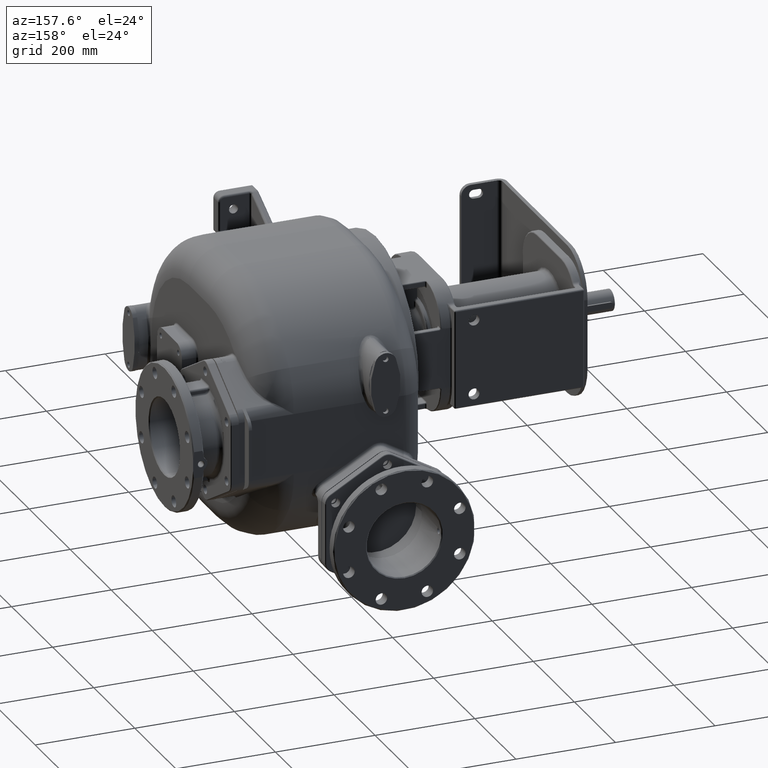
[diagram: clean part render]
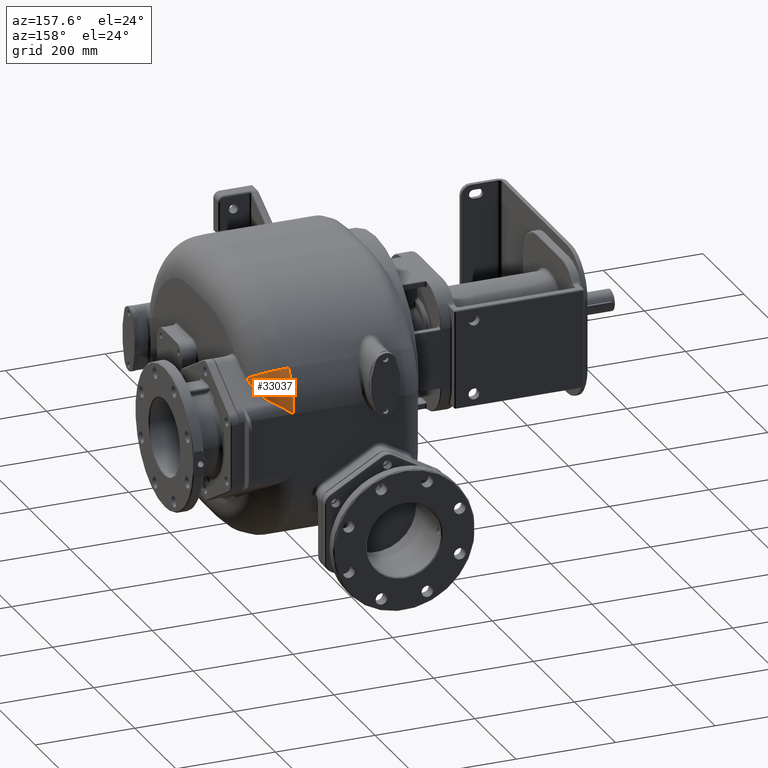
[diagram: same view with one face highlighted and labeled with its STEP entity id]
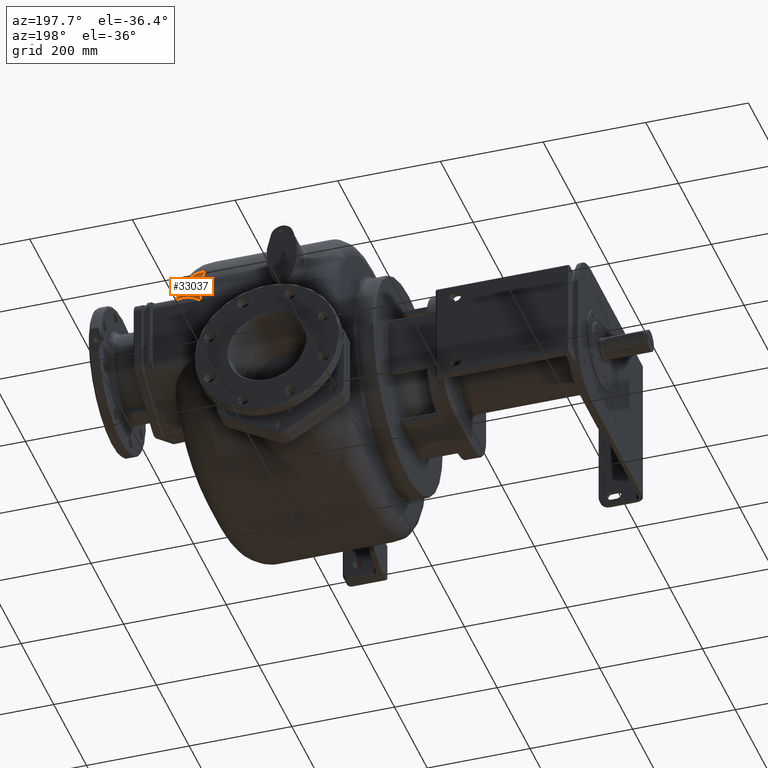
[diagram: same view with one face highlighted and labeled with its STEP entity id]
A machine part, auxiliary view. The second image highlights one B-rep face of the part: STEP entity #33037.
A second angle (auxiliary view) of the same face is appended — the face is thin or edge-on in the first view.
In plain terms, the highlighted toroidal blend (fillet) surface has major radius 82.9167 mm and minor (blend) radius 70 mm.
Its self-contained STEP definition (entity closure, byte-faithful):
#4479=CARTESIAN_POINT('',(1.2E2,5.265641410353E2,7.987209287375E1));
#4480=DIRECTION('',(0.E0,5.457324374936E-1,-8.379594898725E-1));
#4481=DIRECTION('',(0.E0,8.379594898725E-1,5.457324374936E-1));
#4482=AXIS2_PLACEMENT_3D('',#4479,#4480,#4481);
#4484=CARTESIAN_POINT('',(1.870251000919E2,5.434825401822E2,9.089042886316E1));
#8829=CARTESIAN_POINT('',(1.586499507312E2,5.962156773759E2,5.915733488316E1));
#8830=CARTESIAN_POINT('',(1.589997681733E2,5.959526663340E2,5.931481853799E1));
#8831=CARTESIAN_POINT('',(1.596958595641E2,5.954180585678E2,5.963497730158E1));
#8832=CARTESIAN_POINT('',(1.607285673633E2,5.945905005741E2,6.013069264557E1));
#8833=CARTESIAN_POINT('',(1.617496126781E2,5.937369924631E2,6.064206017254E1));
#8834=CARTESIAN_POINT('',(1.627585681694E2,5.928573512401E2,6.116919443771E1));
#8835=CARTESIAN_POINT('',(1.637550280898E2,5.919513640238E2,6.171224137861E1));
#8836=CARTESIAN_POINT('',(1.647385091071E2,5.910188720058E2,6.227133979033E1));
#8837=CARTESIAN_POINT('',(1.657087695328E2,5.900594764489E2,6.284674224036E1));
#8838=CARTESIAN_POINT('',(1.666655982056E2,5.890727016935E2,6.343872676607E1));
#8839=CARTESIAN_POINT('',(1.676087114064E2,5.880580912086E2,6.404757437358E1));
#8840=CARTESIAN_POINT('',(1.685377783328E2,5.870151911304E2,6.467356999673E1));
#8841=CARTESIAN_POINT('',(1.694524219602E2,5.859435511613E2,6.531701333813E1));
#8842=CARTESIAN_POINT('',(1.703521823238E2,5.848427851692E2,6.597814629485E1));
#8843=CARTESIAN_POINT('',(1.712364926908E2,5.837126248200E2,6.665712422149E1));
#8844=CARTESIAN_POINT('',(1.721050073359E2,5.825524966812E2,6.735429988140E1));
#8845=CARTESIAN_POINT('',(1.729581006765E2,5.813607562225E2,6.807067672783E1));
#8846=CARTESIAN_POINT('',(1.737964545964E2,5.801349552240E2,6.880776144759E1));
#8847=CARTESIAN_POINT('',(1.746167759259E2,5.788784540773E2,6.956354072925E1));
#8848=CARTESIAN_POINT('',(1.754148113119E2,5.775970311622E2,7.033453180076E1));
#8849=CARTESIAN_POINT('',(1.761870847745E2,5.762963307203E2,7.111733860900E1));
#8850=CARTESIAN_POINT('',(1.769303201490E2,5.749827350670E2,7.190812556251E1));
#8851=CARTESIAN_POINT('',(1.776419602346E2,5.736626102240E2,7.270306202653E1));
#8852=CARTESIAN_POINT('',(1.783240791920E2,5.723342466352E2,7.350315624812E1));
#8853=CARTESIAN_POINT('',(1.789785409561E2,5.709957041762E2,7.430956474626E1));
#8854=CARTESIAN_POINT('',(1.796061041789E2,5.696469694916E2,7.512228830433E1));
#8855=CARTESIAN_POINT('',(1.802073403053E2,5.682883826640E2,7.594111529941E1));
#8856=CARTESIAN_POINT('',(1.807829634531E2,5.669199215689E2,7.676603670644E1));
#8857=CARTESIAN_POINT('',(1.813336843662E2,5.655414719915E2,7.759710246256E1));
#8858=CARTESIAN_POINT('',(1.818601774596E2,5.641529135863E2,7.843436909798E1));
#8859=CARTESIAN_POINT('',(1.823631060612E2,5.627540671421E2,7.927792275092E1));
#8860=CARTESIAN_POINT('',(1.828431348796E2,5.613446531645E2,8.012790360616E1));
#8861=CARTESIAN_POINT('',(1.833009006641E2,5.599243670920E2,8.098446847917E1));
#8862=CARTESIAN_POINT('',(1.837370238989E2,5.584928531209E2,8.184780271292E1));
#8863=CARTESIAN_POINT('',(1.841520952117E2,5.570497543789E2,8.271808502384E1));
#8864=CARTESIAN_POINT('',(1.845466512026E2,5.555948212914E2,8.359542800827E1));
#8865=CARTESIAN_POINT('',(1.849212261347E2,5.541277571611E2,8.447996912845E1));
#8866=CARTESIAN_POINT('',(1.852763592680E2,5.526481835642E2,8.537188946768E1));
#8867=CARTESIAN_POINT('',(1.856125988286E2,5.511556102367E2,8.627143351138E1));
#8868=CARTESIAN_POINT('',(1.859304940467E2,5.496494449293E2,8.717890278958E1));
#8869=CARTESIAN_POINT('',(1.862305173217E2,5.481293873493E2,8.809441706819E1));
#8870=CARTESIAN_POINT('',(1.865130982683E2,5.465953806014E2,8.901794282863E1));
#8871=CARTESIAN_POINT('',(1.867786924405E2,5.450472940909E2,8.994948795904E1));
#8872=CARTESIAN_POINT('',(1.869447486031E2,5.440057088518E2,9.057589716139E1));
#8873=CARTESIAN_POINT('',(1.870251000919E2,5.434825401822E2,9.089042886316E1));
#8875=CARTESIAN_POINT('',(1.199999978980E2,6.1E2,3.462177826491E1));
#8876=CARTESIAN_POINT('',(1.204631148062E2,6.099999873470E2,3.495257971369E1));
#8877=CARTESIAN_POINT('',(1.213891150267E2,6.099886692438E2,3.561400738475E1));
#8878=CARTESIAN_POINT('',(1.227774978304E2,6.099376727476E2,3.660497134669E1));
#8879=CARTESIAN_POINT('',(1.241638171398E2,6.098528170084E2,3.759296488472E1));
#8880=CARTESIAN_POINT('',(1.255470477189E2,6.097342925545E2,3.857652427735E1));
#8881=CARTESIAN_POINT('',(1.269260027789E2,6.095824003506E2,3.955408458268E1));
#8882=CARTESIAN_POINT('',(1.282997752633E2,6.093974951370E2,4.052427679268E1));
#8883=CARTESIAN_POINT('',(1.296675665052E2,6.091799793139E2,4.148582731389E1));
#8884=CARTESIAN_POINT('',(1.310285497193E2,6.089303177543E2,4.243747070286E1));
#8885=CARTESIAN_POINT('',(1.323819376311E2,6.086490261563E2,4.337798458120E1));
#8886=CARTESIAN_POINT('',(1.337268150345E2,6.083367087009E2,4.430605816268E1));
#8887=CARTESIAN_POINT('',(1.350622565863E2,6.079940412952E2,4.522041757759E1));
#8888=CARTESIAN_POINT('',(1.363873353965E2,6.076217686592E2,4.611983548053E1));
#8889=CARTESIAN_POINT('',(1.377011701270E2,6.072206945295E2,4.700310914101E1));
#8890=CARTESIAN_POINT('',(1.390029644343E2,6.067916587704E2,4.786913608915E1));
#8891=CARTESIAN_POINT('',(1.402919118136E2,6.063355597286E2,4.871686997942E1));
#8892=CARTESIAN_POINT('',(1.415672358709E2,6.058533467270E2,4.954528562093E1));
#8893=CARTESIAN_POINT('',(1.428282424253E2,6.053459913995E2,5.035345026899E1));
#8894=CARTESIAN_POINT('',(1.440742392811E2,6.048145087067E2,5.114050775203E1));
#8895=CARTESIAN_POINT('',(1.453045516501E2,6.042599590282E2,5.190561158725E1));
#8896=CARTESIAN_POINT('',(1.465185603757E2,6.036834226745E2,5.264799765268E1));
#8897=CARTESIAN_POINT('',(1.477156518560E2,6.030860148132E2,5.336698279992E1));
#8898=CARTESIAN_POINT('',(1.488952497226E2,6.024688802560E2,5.406189731227E1));
#8899=CARTESIAN_POINT('',(1.500568847579E2,6.018331393326E2,5.473220842254E1));
#8900=CARTESIAN_POINT('',(1.512000970001E2,6.011799342744E2,5.537743837544E1));
#8901=CARTESIAN_POINT('',(1.523244198126E2,6.005104466371E2,5.599710762296E1));
#8902=CARTESIAN_POINT('',(1.534293777203E2,5.998258861780E2,5.659082932976E1));
#8903=CARTESIAN_POINT('',(1.545145122675E2,5.991274920380E2,5.715822777334E1));
#8904=CARTESIAN_POINT('',(1.555796341107E2,5.984163506904E2,5.769912120314E1));
#8905=CARTESIAN_POINT('',(1.566246029822E2,5.976935121465E2,5.821342360662E1));
#8906=CARTESIAN_POINT('',(1.576492560460E2,5.969600541781E2,5.870100856846E1));
#8907=CARTESIAN_POINT('',(1.583186491103E2,5.964647651190E2,5.900818792695E1));
#8908=CARTESIAN_POINT('',(1.586499507312E2,5.962156773759E2,5.915733488316E1));
#8910=CARTESIAN_POINT('',(1.2E2,4.570833333333E2,3.462177826491E1));
#8911=DIRECTION('',(1.E0,0.E0,0.E0));
#8912=DIRECTION('',(0.E0,1.E0,0.E0));
#8913=AXIS2_PLACEMENT_3D('',#8910,#8911,#8912);
#22187=CARTESIAN_POINT('',(1.2E2,5.852213053263E2,1.180733634983E2));
#22188=VERTEX_POINT('',#22187);
#22583=VERTEX_POINT('',#4484);
#22663=CARTESIAN_POINT('',(1.199999978980E2,6.1E2,3.462177826491E1));
#22664=VERTEX_POINT('',#22663);
#22668=VERTEX_POINT('',#8829);
#33025=CARTESIAN_POINT('',(1.2E2,4.570833333333E2,3.462177826491E1));
#33026=DIRECTION('',(-1.E0,0.E0,0.E0));
#33027=DIRECTION('',(0.E0,9.999135331714E-1,-1.315013995275E-2));
#33028=AXIS2_PLACEMENT_3D('',#33025,#33026,#33027);
#33029=TOROIDAL_SURFACE('',#33028,8.291666666667E1,7.E1);
#33030=ORIENTED_EDGE('',*,*,#33016,.T.);
#33031=ORIENTED_EDGE('',*,*,#29198,.F.);
#33033=ORIENTED_EDGE('',*,*,#33032,.F.);
#33034=ORIENTED_EDGE('',*,*,#32946,.T.);
#33035=EDGE_LOOP('',(#33030,#33031,#33033,#33034));
#33036=FACE_OUTER_BOUND('',#33035,.F.);
#33037=ADVANCED_FACE('',(#33036),#33029,.T.);
#4483=CIRCLE('',#4482,7.E1);
#8874=B_SPLINE_CURVE_WITH_KNOTS('',3,(#8829,#8830,#8831,#8832,#8833,#8834,#8835,
#8836,#8837,#8838,#8839,#8840,#8841,#8842,#8843,#8844,#8845,#8846,#8847,#8848,
#8849,#8850,#8851,#8852,#8853,#8854,#8855,#8856,#8857,#8858,#8859,#8860,#8861,
#8862,#8863,#8864,#8865,#8866,#8867,#8868,#8869,#8870,#8871,#8872,#8873),
.UNSPECIFIED.,.F.,.F.,(4,1,1,1,1,1,1,1,1,1,1,1,1,1,1,1,1,1,1,1,1,1,1,1,1,1,1,1,
1,1,1,1,1,1,1,1,1,1,1,1,1,1,4),(0.E0,2.380952380952E-2,4.761904761905E-2,
7.142857142857E-2,9.523809523810E-2,1.190476190476E-1,1.428571428571E-1,
1.666666666667E-1,1.904761904762E-1,2.142857142857E-1,2.380952380952E-1,
2.619047619048E-1,2.857142857143E-1,3.095238095238E-1,3.333333333333E-1,
3.571428571429E-1,3.809523809524E-1,4.047619047619E-1,4.285714285714E-1,
4.523809523810E-1,4.761904761905E-1,5.E-1,5.238095238095E-1,5.476190476190E-1,
5.714285714286E-1,5.952380952381E-1,6.190476190476E-1,6.428571428571E-1,
6.666666666667E-1,6.904761904762E-1,7.142857142857E-1,7.380952380952E-1,
7.619047619048E-1,7.857142857143E-1,8.095238095238E-1,8.333333333333E-1,
8.571428571429E-1,8.809523809524E-1,9.047619047619E-1,9.285714285714E-1,
9.523809523810E-1,9.761904761905E-1,1.E0),.UNSPECIFIED.);
#8909=B_SPLINE_CURVE_WITH_KNOTS('',3,(#8875,#8876,#8877,#8878,#8879,#8880,#8881,
#8882,#8883,#8884,#8885,#8886,#8887,#8888,#8889,#8890,#8891,#8892,#8893,#8894,
#8895,#8896,#8897,#8898,#8899,#8900,#8901,#8902,#8903,#8904,#8905,#8906,#8907,
#8908),.UNSPECIFIED.,.F.,.F.,(4,1,1,1,1,1,1,1,1,1,1,1,1,1,1,1,1,1,1,1,1,1,1,1,1,
1,1,1,1,1,1,4),(0.E0,3.225806451613E-2,6.451612903226E-2,9.677419354839E-2,
1.290322580645E-1,1.612903225806E-1,1.935483870968E-1,2.258064516129E-1,
2.580645161290E-1,2.903225806452E-1,3.225806451613E-1,3.548387096774E-1,
3.870967741935E-1,4.193548387097E-1,4.516129032258E-1,4.838709677419E-1,
5.161290322581E-1,5.483870967742E-1,5.806451612903E-1,6.129032258065E-1,
6.451612903226E-1,6.774193548387E-1,7.096774193548E-1,7.419354838710E-1,
7.741935483871E-1,8.064516129032E-1,8.387096774194E-1,8.709677419355E-1,
9.032258064516E-1,9.354838709677E-1,9.677419354839E-1,1.E0),.UNSPECIFIED.);
#8914=CIRCLE('',#8913,1.529166666667E2);
#29198=EDGE_CURVE('',#22188,#22583,#4483,.T.);
#32946=EDGE_CURVE('',#22664,#22668,#8909,.T.);
#33016=EDGE_CURVE('',#22668,#22583,#8874,.T.);
#33032=EDGE_CURVE('',#22664,#22188,#8914,.T.);